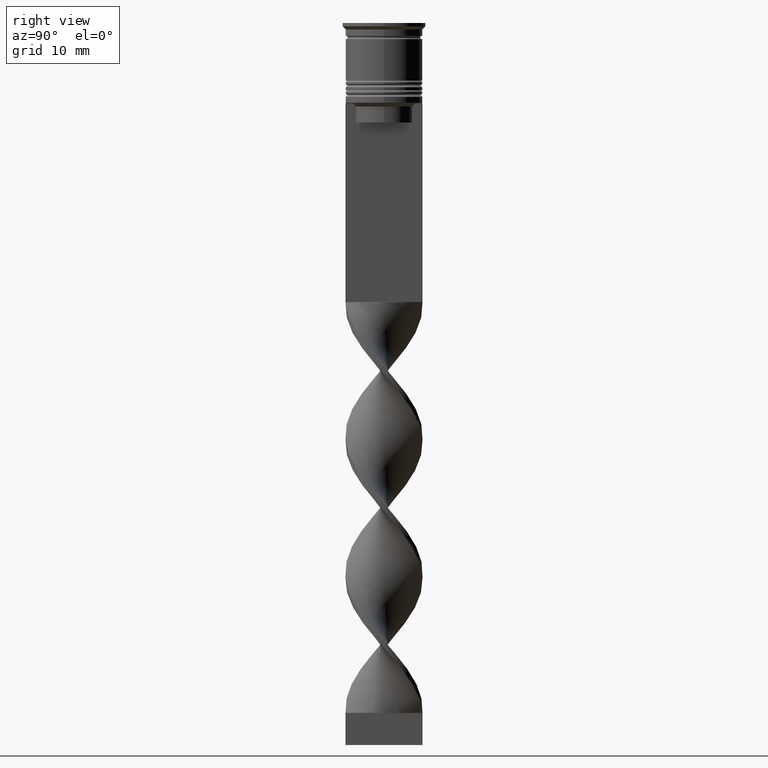
[diagram: clean part render]
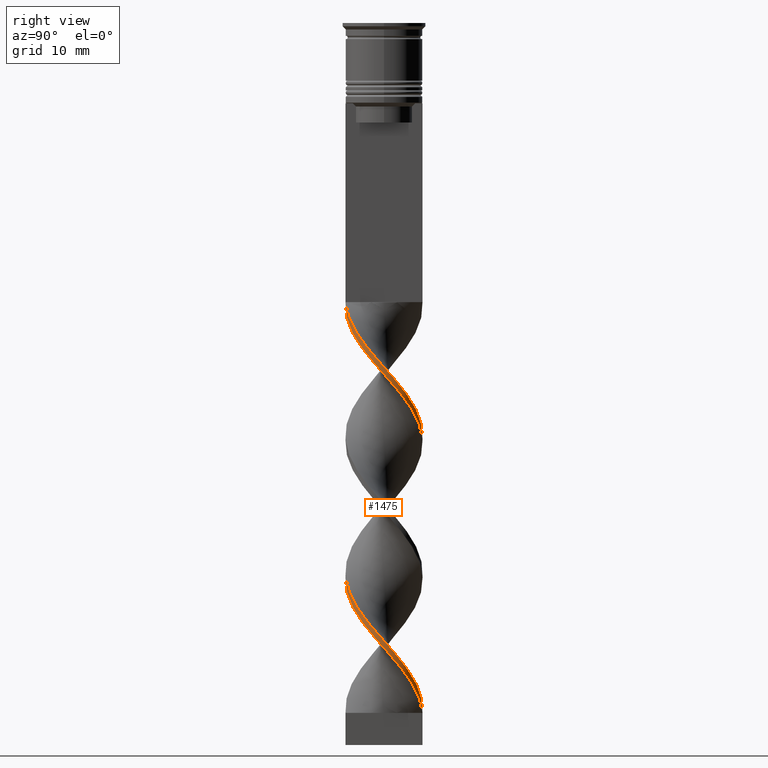
[diagram: same view with one face highlighted and labeled with its STEP entity id]
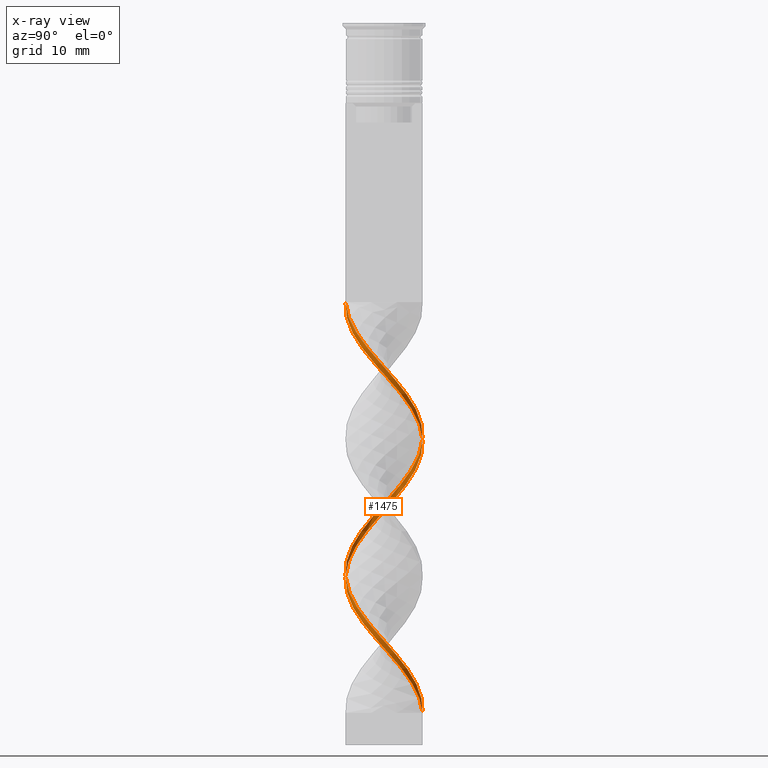
[diagram: x-ray of the same camera — body ghosted, the highlighted face saturated]
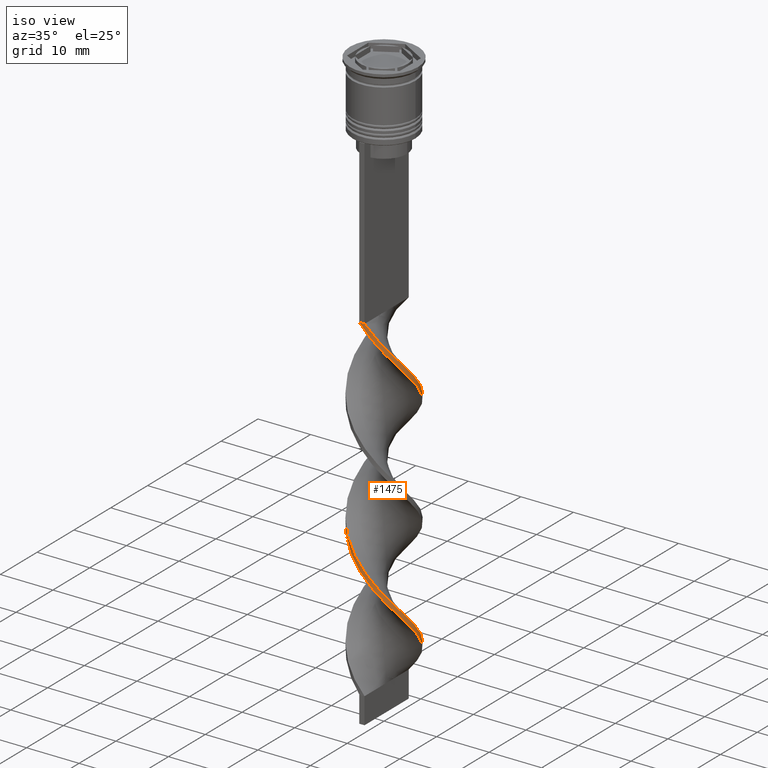
[diagram: same view with one face highlighted and labeled with its STEP entity id]
A machine part, right view. The second image highlights one B-rep face of the part: STEP entity #1475.
The next image is the same camera in x-ray: the body ghosted, the highlighted face saturated — about 0% of this face is hidden behind the body in this view.
A second angle (iso view) of the same face is appended — the face is thin or edge-on in the first view.
In plain terms, the highlighted face is a freeform B-spline surface patch.
Its self-contained STEP definition (entity closure, byte-faithful):
#14 = CARTESIAN_POINT ( 'NONE',  ( 4.352991323530321921, -4.159503159906209113, -91.08974358974359120 ) ) ;
#36 = CARTESIAN_POINT ( 'NONE',  ( -4.190053366537505042, 4.384962638200773810, -70.57692307692306599 ) ) ;
#38 = CARTESIAN_POINT ( 'NONE',  ( -5.988975108237873712, 0.9574036273986639145, -73.85897435897436480 ) ) ;
#42 = CARTESIAN_POINT ( 'NONE',  ( 0.2285318993335633819, -6.060710991611130360, -44.32051282051282470 ) ) ;
#47 = CARTESIAN_POINT ( 'NONE',  ( 1.228531899333563215, -5.939289008388868751, -44.32051282051282470 ) ) ;
#52 = CARTESIAN_POINT ( 'NONE',  ( 4.858046446425394294, 3.630954320453863016, -59.08974358974359120 ) ) ;
#54 = CARTESIAN_POINT ( 'NONE',  ( -4.190053366537510371, -4.384962638200768481, -80.42307692307691980 ) ) ;
#58 = CARTESIAN_POINT ( 'NONE',  ( -2.614197889543184328, -5.472697136436196708, -83.70512820512820440 ) ) ;
#68 = CARTESIAN_POINT ( 'NONE',  ( 5.895984904460662257, 1.219574518580964551, -97.65384615384614619 ) ) ;
#76 = CARTESIAN_POINT ( 'NONE',  ( -1.921364894438377657, -5.705993072412531397, -84.52564102564103621 ) ) ;
#88 = CARTESIAN_POINT ( 'NONE',  ( 6.044068061194097119, -0.5036723384328415376, -54.16666666666665719 ) ) ;
#108 = CARTESIAN_POINT ( 'NONE',  ( 1.921364894438374549, 5.705993072412533174, -105.8589743589743506 ) ) ;
#110 = CARTESIAN_POINT ( 'NONE',  ( -2.614197889543180331, 5.472697136436198484, -67.29487179487178139 ) ) ;
#114 = CARTESIAN_POINT ( 'NONE',  ( 4.858046446425394294, 3.630954320453863016, -59.08974358974358410 ) ) ;
#118 = CARTESIAN_POINT ( 'NONE',  ( -3.018907784180934861, -5.260288998093234802, -82.06410256410255499 ) ) ;
#124 = CARTESIAN_POINT ( 'NONE',  ( -5.432795012591220107, 2.595137443597922644, -73.03846153846153300 ) ) ;
#132 = CARTESIAN_POINT ( 'NONE',  ( 3.018907784180934417, -5.260288998093235691, -90.26923076923077360 ) ) ;
#140 = CARTESIAN_POINT ( 'NONE',  ( -4.653870821996361151, -3.819880413333761826, -79.60256410256410220 ) ) ;
#145 = CARTESIAN_POINT ( 'NONE',  ( 5.895984904460662257, -1.219574518580966105, -96.01282051282051100 ) ) ;
#149 = CARTESIAN_POINT ( 'NONE',  ( 0.5000000000000005551, 6.000000000000000000, -107.5000000000000000 ) ) ;
#153 = CARTESIAN_POINT ( 'NONE',  ( 4.190053366537507706, 4.384962638200772034, -101.7564102564102484 ) ) ;
#162 = CARTESIAN_POINT ( 'NONE',  ( 5.221935568727516852, 2.996896547440106140, -100.9358974358974308 ) ) ;
#167 = CARTESIAN_POINT ( 'NONE',  ( -0.4999999999999994449, 5.999999999999999112, -107.5000000000000000 ) ) ;
#171 = CARTESIAN_POINT ( 'NONE',  ( -2.614197889543184328, -5.472697136436196708, -83.70512820512820440 ) ) ;
#189 = CARTESIAN_POINT ( 'NONE',  ( 4.190053366537507706, 4.384962638200772034, -59.08974358974358410 ) ) ;
#201 = CARTESIAN_POINT ( 'NONE',  ( 5.432795012591220107, -2.595137443597922200, -94.37179487179486159 ) ) ;
#271 = CARTESIAN_POINT ( 'NONE',  ( 5.585824691029640299, -2.362838774426348820, -93.55128205128204399 ) ) ;
#310 = CARTESIAN_POINT ( 'NONE',  ( 1.921364894438374549, 5.705993072412533174, -63.19230769230768630 ) ) ;
#322 = VERTEX_POINT ( 'NONE', #1308 ) ;
#323 = CARTESIAN_POINT ( 'NONE',  ( 0.5000000000000002220, -5.999999999999999112, -43.50000000000000000 ) ) ;
#325 = CARTESIAN_POINT ( 'NONE',  ( 4.858046446425393405, -3.630954320453865236, -91.91025641025643722 ) ) ;
#328 = CARTESIAN_POINT ( 'NONE',  ( -5.117688277455215484, -3.254798188466751174, -78.78205128205127039 ) ) ;
#332 = CARTESIAN_POINT ( 'NONE',  ( 2.345611019436006028, -5.545097739941144077, -46.78205128205127750 ) ) ;
#340 = CARTESIAN_POINT ( 'NONE',  ( 3.847936200635250437, 4.688051999358552990, -60.73076923076922640 ) ) ;
#342 = CARTESIAN_POINT ( 'NONE',  ( 5.988975108237873712, -0.9574036273986643586, -52.52564102564103621 ) ) ;
#346 = CARTESIAN_POINT ( 'NONE',  ( 5.117688277455213708, -3.254798188466753839, -50.88461538461537970 ) ) ;
#351 = CARTESIAN_POINT ( 'NONE',  ( 6.016521584715984972, -0.2268656444829120489, -53.34615384615383959 ) ) ;
#358 = CARTESIAN_POINT ( 'NONE',  ( 1.228531899333566102, 5.939289008388869640, -64.01282051282051100 ) ) ;
#360 = CARTESIAN_POINT ( 'NONE',  ( 3.231067045089215828, -5.080374567897375293, -46.78205128205127750 ) ) ;
#368 = CARTESIAN_POINT ( 'NONE',  ( -5.117688277455211932, 3.254798188466756503, -72.21794871794871540 ) ) ;
#380 = CARTESIAN_POINT ( 'NONE',  ( 0.5000000000000005551, 6.000000000000000000, -107.5000000000000000 ) ) ;
#387 = CARTESIAN_POINT ( 'NONE',  ( -5.432795012591220107, 2.595137443597922644, -73.03846153846153300 ) ) ;
#395 = CARTESIAN_POINT ( 'NONE',  ( 3.231067045089215828, -5.080374567897374405, -46.78205128205127750 ) ) ;
#399 = CARTESIAN_POINT ( 'NONE',  ( 4.653870821996360263, -3.819880413333763158, -92.73076923076922640 ) ) ;
#403 = CARTESIAN_POINT ( 'NONE',  ( 1.228531899333565880, 5.939289008388869640, -64.01282051282051100 ) ) ;
#409 = CARTESIAN_POINT ( 'NONE',  ( 3.018907784180934417, 5.260288998093234802, -60.73076923076922640 ) ) ;
#426 = CARTESIAN_POINT ( 'NONE',  ( 6.016521584715984972, -0.2268656444829120489, -96.01282051282051100 ) ) ;
#432 = CARTESIAN_POINT ( 'NONE',  ( -0.4999999999999997780, -6.000000000000000000, -86.16666666666667140 ) ) ;
#441 = CARTESIAN_POINT ( 'NONE',  ( 6.044068061194096231, 0.5036723384328413156, -96.83333333333332860 ) ) ;
#442 = VERTEX_POINT ( 'NONE', #3404 ) ;
#452 = CARTESIAN_POINT ( 'NONE',  ( 4.352991323530322809, 4.159503159906207337, -102.5769230769230660 ) ) ;
#455 = CARTESIAN_POINT ( 'NONE',  ( 5.895984904460661369, 1.219574518580964329, -97.65384615384614619 ) ) ;
#478 = CARTESIAN_POINT ( 'NONE',  ( -3.847936200635249104, 4.688051999358553878, -68.93589743589743080 ) ) ;
#522 = CARTESIAN_POINT ( 'NONE',  ( 0.5000000000000002220, -6.000000000000000000, -86.16666666666667140 ) ) ;
#549 = FACE_OUTER_BOUND ( 'NONE', #793, .T. ) ;
#568 = CARTESIAN_POINT ( 'NONE',  ( 0.5000000000000002220, -6.000000000000000000, -43.50000000000000000 ) ) ;
#582 = CARTESIAN_POINT ( 'NONE',  ( -3.018907784180934417, 5.260288998093236579, -68.93589743589743080 ) ) ;
#584 = CARTESIAN_POINT ( 'NONE',  ( -4.352991323530321033, 4.159503159906210001, -69.75641025641024839 ) ) ;
#603 = CARTESIAN_POINT ( 'NONE',  ( -5.432795012591220996, -2.595137443597921312, -77.96153846153845279 ) ) ;
#609 = CARTESIAN_POINT ( 'NONE',  ( -5.585824691029640299, -2.362838774426345712, -78.78205128205127039 ) ) ;
#622 = CARTESIAN_POINT ( 'NONE',  ( 4.653870821996360263, -3.819880413333763158, -50.06410256410256210 ) ) ;
#630 = CARTESIAN_POINT ( 'NONE',  ( 0.5000000000000005551, 6.000000000000000000, -107.5000000000000000 ) ) ;
#636 = CARTESIAN_POINT ( 'NONE',  ( -4.190053366537505042, 4.384962638200774698, -70.57692307692306599 ) ) ;
#653 = CARTESIAN_POINT ( 'NONE',  ( -1.672314254691075641, 5.829906481789053352, -67.29487179487178139 ) ) ;
#660 = CARTESIAN_POINT ( 'NONE',  ( 2.614197889543183884, 5.472697136436196708, -62.37179487179486870 ) ) ;
#671 = CARTESIAN_POINT ( 'NONE',  ( -5.895984904460662257, 1.219574518580968325, -74.67948717948718240 ) ) ;
#678 = CARTESIAN_POINT ( 'NONE',  ( 5.221935568727516852, 2.996896547440106140, -58.26923076923076650 ) ) ;
#684 = CARTESIAN_POINT ( 'NONE',  ( 4.653870821996360263, 3.819880413333762270, -100.9358974358974308 ) ) ;
#687 = CARTESIAN_POINT ( 'NONE',  ( 0.9504230770123207606, -5.945308736700090968, -87.80769230769230660 ) ) ;
#694 = CARTESIAN_POINT ( 'NONE',  ( 6.044068061194097119, -0.5036723384328415376, -96.83333333333332860 ) ) ;
#697 = CARTESIAN_POINT ( 'NONE',  ( 1.228531899333563215, -5.939289008388868751, -86.98717948717948900 ) ) ;
#702 = CARTESIAN_POINT ( 'NONE',  ( 3.231067045089216716, 5.080374567897374405, -104.2179487179487012 ) ) ;
#716 = CARTESIAN_POINT ( 'NONE',  ( 0.2285318993335655469, 6.060710991611129472, -106.6794871794871824 ) ) ;
#721 = CARTESIAN_POINT ( 'NONE',  ( 2.614197889543183884, 5.472697136436196708, -105.0384615384615330 ) ) ;
#732 = CARTESIAN_POINT ( 'NONE',  ( 1.672314254691078972, 5.829906481789051576, -62.37179487179486870 ) ) ;
#749 = CARTESIAN_POINT ( 'NONE',  ( -5.221935568727515076, 2.996896547440107028, -71.39743589743588359 ) ) ;
#793 = EDGE_LOOP ( 'NONE', ( #2216, #2337, #2950, #1020 ) ) ;
#798 = CARTESIAN_POINT ( 'NONE',  ( -0.2285318993335664073, -6.060710991611129472, -85.34615384615383959 ) ) ;
#839 = CARTESIAN_POINT ( 'NONE',  ( -0.1666666666666661578, 5.999999999999999112, -107.5000000000000000 ) ) ;
#840 = CARTESIAN_POINT ( 'NONE',  ( 5.787399899633756561, -1.660121200912507478, -94.37179487179486159 ) ) ;
#858 = CARTESIAN_POINT ( 'NONE',  ( 1.672314254691077862, -5.829906481789053352, -45.96153846153845279 ) ) ;
#870 = CARTESIAN_POINT ( 'NONE',  ( -5.895984904460663145, -1.219574518580961442, -76.32051282051281760 ) ) ;
#885 = CARTESIAN_POINT ( 'NONE',  ( 0.9504230770123225369, 5.945308736700090968, -105.8589743589743506 ) ) ;
#887 = CARTESIAN_POINT ( 'NONE',  ( 2.614197889543182107, -5.472697136436197596, -45.96153846153845279 ) ) ;
#895 = CARTESIAN_POINT ( 'NONE',  ( -3.604480575359219507, 4.822625818147005639, -69.75641025641024839 ) ) ;
#902 = CARTESIAN_POINT ( 'NONE',  ( 5.895984904460662257, -1.219574518580966105, -53.34615384615383959 ) ) ;
#904 = CARTESIAN_POINT ( 'NONE',  ( 6.016521584715985860, -0.2268656444829121599, -53.34615384615383959 ) ) ;
#908 = CARTESIAN_POINT ( 'NONE',  ( -0.4999999999999997780, -6.000000000000000000, -86.16666666666667140 ) ) ;
#915 = CARTESIAN_POINT ( 'NONE',  ( 5.432795012591220107, 2.595137443597919980, -56.62820512820513130 ) ) ;
#920 = CARTESIAN_POINT ( 'NONE',  ( 5.787399899633756561, 1.660121200912505479, -56.62820512820513130 ) ) ;
#922 = CARTESIAN_POINT ( 'NONE',  ( 5.117688277455213708, 3.254798188466753395, -57.44871794871794890 ) ) ;
#926 = CARTESIAN_POINT ( 'NONE',  ( -5.221935568727517740, -2.996896547440105252, -79.60256410256410220 ) ) ;
#941 = CARTESIAN_POINT ( 'NONE',  ( 5.432795012591220107, -2.595137443597922200, -94.37179487179486159 ) ) ;
#943 = CARTESIAN_POINT ( 'NONE',  ( -3.231067045089215828, 5.080374567897375293, -68.11538461538459899 ) ) ;
#948 = CARTESIAN_POINT ( 'NONE',  ( 0.5000000000000005551, 6.000000000000000000, -64.83333333333332860 ) ) ;
#955 = CARTESIAN_POINT ( 'NONE',  ( 5.432795012591220107, 2.595137443597919980, -99.29487179487178139 ) ) ;
#959 = CARTESIAN_POINT ( 'NONE',  ( -3.231067045089219825, -5.080374567897373517, -82.88461538461537259 ) ) ;
#968 = CARTESIAN_POINT ( 'NONE',  ( -4.190053366537509483, -4.384962638200769369, -80.42307692307691980 ) ) ;
#984 = CARTESIAN_POINT ( 'NONE',  ( 1.672314254691078972, 5.829906481789051576, -105.0384615384615188 ) ) ;
#990 = CARTESIAN_POINT ( 'NONE',  ( 6.044068061194097119, -0.5036723384328415376, -96.83333333333332860 ) ) ;
#1004 = CARTESIAN_POINT ( 'NONE',  ( -6.044068061194096231, -0.5036723384328406494, -75.50000000000000000 ) ) ;
#1010 = CARTESIAN_POINT ( 'NONE',  ( -5.747901747727229171, 1.935476698729089007, -73.85897435897436480 ) ) ;
#1017 = CARTESIAN_POINT ( 'NONE',  ( 3.847936200635250881, 4.688051999358552990, -103.3974358974358836 ) ) ;
#1020 = ORIENTED_EDGE ( 'NONE', *, *, #2644, .F. ) ;
#1024 = CARTESIAN_POINT ( 'NONE',  ( -1.921364894438370552, 5.705993072412533174, -66.47435897435896379 ) ) ;
#1032 = CARTESIAN_POINT ( 'NONE',  ( 5.988975108237873712, -0.9574036273986643586, -95.19230769230769340 ) ) ;
#1044 = DIRECTION ( 'NONE',  ( -1.000000000000000000, 0.000000000000000000, 0.000000000000000000 ) ) ;
#1066 = VERTEX_POINT ( 'NONE', #1462 ) ;
#1147 = CARTESIAN_POINT ( 'NONE',  ( 4.653870821996361151, 3.819880413333762714, -100.9358974358974308 ) ) ;
#1149 = CARTESIAN_POINT ( 'NONE',  ( -6.044068061194097119, -0.5036723384328405384, -75.49999999999998579 ) ) ;
#1153 = CARTESIAN_POINT ( 'NONE',  ( 6.044068061194097119, -0.5036723384328415376, -54.16666666666666430 ) ) ;
#1161 = CARTESIAN_POINT ( 'NONE',  ( -3.604480575359222616, -4.822625818147002086, -81.24358974358973740 ) ) ;
#1166 = CARTESIAN_POINT ( 'NONE',  ( -5.747901747727229171, 1.935476698729089229, -73.85897435897436480 ) ) ;
#1172 = CARTESIAN_POINT ( 'NONE',  ( 4.352991323530321033, -4.159503159906209113, -48.42307692307691269 ) ) ;
#1177 = CARTESIAN_POINT ( 'NONE',  ( 1.672314254691079638, 5.829906481789052464, -105.0384615384615330 ) ) ;
#1179 = CARTESIAN_POINT ( 'NONE',  ( 6.044068061194097119, 0.5036723384328413156, -54.16666666666665719 ) ) ;
#1186 = CARTESIAN_POINT ( 'NONE',  ( -0.2285318993335620774, 6.060710991611130360, -65.65384615384614619 ) ) ;
#1194 = CARTESIAN_POINT ( 'NONE',  ( 6.044068061194096231, 0.5036723384328413156, -54.16666666666666430 ) ) ;
#1196 = CARTESIAN_POINT ( 'NONE',  ( 3.604480575359220396, -4.822625818147004750, -48.42307692307691269 ) ) ;
#1198 = CARTESIAN_POINT ( 'NONE',  ( 4.858046446425393405, -3.630954320453865236, -49.24358974358973740 ) ) ;
#1212 = CARTESIAN_POINT ( 'NONE',  ( 5.221935568727515964, -2.996896547440107472, -92.73076923076922640 ) ) ;
#1214 = CARTESIAN_POINT ( 'NONE',  ( 4.352991323530321921, -4.159503159906209113, -48.42307692307691269 ) ) ;
#1218 = CARTESIAN_POINT ( 'NONE',  ( 4.352991323530322809, 4.159503159906207337, -59.91025641025640880 ) ) ;
#1226 = CARTESIAN_POINT ( 'NONE',  ( 4.858046446425392517, -3.630954320453864348, -91.91025641025643722 ) ) ;
#1245 = CARTESIAN_POINT ( 'NONE',  ( 4.653870821996360263, 3.819880413333762270, -58.26923076923076650 ) ) ;
#1251 = CARTESIAN_POINT ( 'NONE',  ( 5.585824691029640299, 2.362838774426348376, -100.1153846153846274 ) ) ;
#1259 = CARTESIAN_POINT ( 'NONE',  ( 3.604480575359220840, 4.822625818147002086, -102.5769230769230660 ) ) ;
#1263 = CARTESIAN_POINT ( 'NONE',  ( -5.787399899633756561, -1.660121200912506367, -77.96153846153845279 ) ) ;
#1276 = CARTESIAN_POINT ( 'NONE',  ( -5.895984904460662257, -1.219574518580961220, -76.32051282051281760 ) ) ;
#1281 = CARTESIAN_POINT ( 'NONE',  ( 4.190053366537506818, -4.384962638200772922, -91.91025641025643722 ) ) ;
#1299 = CARTESIAN_POINT ( 'NONE',  ( 0.2285318993335655469, 6.060710991611129472, -64.01282051282051100 ) ) ;
#1308 = CARTESIAN_POINT ( 'NONE',  ( 0.5000000000000002220, -5.999999999999999112, -43.50000000000000000 ) ) ;
#1309 = CARTESIAN_POINT ( 'NONE',  ( 1.228531899333565880, 5.939289008388869640, -106.6794871794871824 ) ) ;
#1366 = CARTESIAN_POINT ( 'NONE',  ( 1.228531899333563659, -5.939289008388869640, -86.98717948717948900 ) ) ;
#1368 = EDGE_CURVE ( 'NONE', #3313, #1066, #3231, .T. ) ;
#1423 = CARTESIAN_POINT ( 'NONE',  ( -0.2285318993335620774, 6.060710991611129472, -65.65384615384614619 ) ) ;
#1425 = CARTESIAN_POINT ( 'NONE',  ( 1.228531899333563659, -5.939289008388869640, -44.32051282051282470 ) ) ;
#1437 = CARTESIAN_POINT ( 'NONE',  ( 6.016521584715985860, -0.2268656444829121599, -96.01282051282051100 ) ) ;
#1439 = CARTESIAN_POINT ( 'NONE',  ( -4.858046446425391629, 3.630954320453866568, -70.57692307692306599 ) ) ;
#1443 = CARTESIAN_POINT ( 'NONE',  ( -6.044068061194097119, 0.5036723384328423148, -75.50000000000000000 ) ) ;
#1452 = CARTESIAN_POINT ( 'NONE',  ( 2.614197889543183884, 5.472697136436196708, -62.37179487179486870 ) ) ;
#1456 = CARTESIAN_POINT ( 'NONE',  ( -3.847936200635251325, -4.688051999358552990, -82.06410256410255499 ) ) ;
#1462 = CARTESIAN_POINT ( 'NONE',  ( 0.5000000000000005551, 6.000000000000000000, -107.5000000000000000 ) ) ;
#1463 = CARTESIAN_POINT ( 'NONE',  ( 5.895984904460661369, 1.219574518580964329, -54.98717948717948190 ) ) ;
#1470 = CARTESIAN_POINT ( 'NONE',  ( 3.231067045089216716, 5.080374567897374405, -61.55128205128204399 ) ) ;
#1472 = CARTESIAN_POINT ( 'NONE',  ( 5.787399899633756561, -1.660121200912507478, -51.70512820512820440 ) ) ;
#1475 = ADVANCED_FACE ( 'NONE', ( #549 ), #1611, .T. ) ;
#1481 =( BOUNDED_CURVE ( )  B_SPLINE_CURVE ( 2, ( #323, #47, #1999, #2561, #395, #2254, #1172, #2602, #2327, #2016, #1741, #2844, #351, #1194, #1463, #2584, #915, #3135, #1245, #189, #1588, #409, #2934, #732, #1519, #1299, #1829, #3238, #1024, #2068, #2413, #478, #2361, #3472, #749, #2633, #3520, #1798, #1541, #1004, #1276, #1863, #2969, #2902, #140, #968, #1814, #118, #2135, #2082, #3217, #1844, #3186, #697, #3172, #2949, #2665, #2918, #3203, #1226, #2345, #3455, #2681, #2117, #426, #441, #455, #2649, #955, #1554, #684, #153, #1259, #2376, #3486, #984, #2098, #716, #167 ),
 .UNSPECIFIED., .F., .T. ) 
 B_SPLINE_CURVE_WITH_KNOTS ( ( 3, 2, 2, 2, 2, 2, 2, 2, 2, 2, 2, 2, 2, 2, 2, 2, 2, 2, 2, 2, 2, 2, 2, 2, 2, 2, 2, 2, 2, 2, 2, 2, 2, 2, 2, 2, 2, 2, 2, 3 ),
 ( 0.000000000000000000, 0.01923076923076923184, 0.03846153846153846367, 0.05769230769230768857, 0.07692307692307692735, 0.09615384615384615918, 0.1153846153846153771, 0.1346153846153846090, 0.1538461538461538547, 0.1730769230769230449, 0.1923076923076923184, 0.2115384615384615363, 0.2307692307692307543, 0.2500000000000000000, 0.2692307692307692180, 0.2884615384615384359, 0.3076923076923077094, 0.3269230769230769273, 0.3461538461538460898, 0.3653846153846153633, 0.3846153846153846367, 0.4038461538461539102, 0.4230769230769230727, 0.4423076923076922906, 0.4615384615384615086, 0.4807692307692307820, 0.5000000000000000000, 0.5192307692307692735, 0.5384615384615384359, 0.5576923076923077094, 0.5769230769230768718, 0.5961538461538461453, 0.6153846153846154188, 0.6346153846153845812, 0.6538461538461538547, 0.6730769230769230171, 0.6923076923076921796, 0.7115384615384615641, 0.7307692307692307265, 0.7500000000000000000 ),
 .UNSPECIFIED. ) 
 CURVE ( )  GEOMETRIC_REPRESENTATION_ITEM ( )  RATIONAL_B_SPLINE_CURVE ( ( 1.000000000000000000, 0.9927088740980539727, 1.000000000000000000, 0.9927088740980539727, 1.000000000000000000, 0.9927088740980539727, 1.000000000000000000, 0.9927088740980539727, 1.000000000000000000, 0.9927088740980539727, 1.000000000000000000, 0.9927088740980539727, 1.000000000000000000, 0.9927088740980539727, 1.000000000000000000, 0.9927088740980539727, 1.000000000000000000, 0.9927088740980539727, 1.000000000000000000, 0.9927088740980539727, 1.000000000000000000, 0.9927088740980539727, 1.000000000000000000, 0.9927088740980539727, 1.000000000000000000, 0.9927088740980539727, 1.000000000000000000, 0.9927088740980539727, 1.000000000000000000, 0.9927088740980539727, 1.000000000000000000, 0.9927088740980539727, 1.000000000000000000, 0.9927088740980539727, 1.000000000000000000, 0.9927088740980539727, 1.000000000000000000, 0.9927088740980539727, 1.000000000000000000, 0.9927088740980539727, 1.000000000000000000, 0.9927088740980539727, 1.000000000000000000, 0.9927088740980539727, 1.000000000000000000, 0.9927088740980539727, 1.000000000000000000, 0.9927088740980539727, 1.000000000000000000, 0.9927088740980539727, 1.000000000000000000, 0.9927088740980539727, 1.000000000000000000, 0.9927088740980539727, 1.000000000000000000, 0.9927088740980539727, 1.000000000000000000, 0.9927088740980539727, 1.000000000000000000, 0.9927088740980539727, 1.000000000000000000, 0.9927088740980539727, 1.000000000000000000, 0.9927088740980539727, 1.000000000000000000, 0.9927088740980539727, 1.000000000000000000, 0.9927088740980539727, 1.000000000000000000, 0.9927088740980539727, 1.000000000000000000, 0.9927088740980539727, 1.000000000000000000, 0.9927088740980539727, 1.000000000000000000, 0.9927088740980539727, 1.000000000000000000, 0.9927088740980539727, 1.000000000000000000 ) ) 
 REPRESENTATION_ITEM ( '' )  );
#1482 = CARTESIAN_POINT ( 'NONE',  ( -4.858046446425396070, -3.630954320453860351, -80.42307692307691980 ) ) ;
#1492 = CARTESIAN_POINT ( 'NONE',  ( 4.653870821996361151, 3.819880413333762714, -58.26923076923076650 ) ) ;
#1498 = CARTESIAN_POINT ( 'NONE',  ( 1.672314254691077640, -5.829906481789053352, -45.96153846153845990 ) ) ;
#1506 = CARTESIAN_POINT ( 'NONE',  ( -5.117688277455211932, 3.254798188466756947, -72.21794871794871540 ) ) ;
#1512 = CARTESIAN_POINT ( 'NONE',  ( 4.190053366537506818, -4.384962638200773810, -91.91025641025643722 ) ) ;
#1519 = CARTESIAN_POINT ( 'NONE',  ( 0.9504230770123223149, 5.945308736700090080, -63.19230769230768630 ) ) ;
#1529 = CARTESIAN_POINT ( 'NONE',  ( 0.2285318993335633819, -6.060710991611129472, -86.98717948717948900 ) ) ;
#1535 = CARTESIAN_POINT ( 'NONE',  ( 5.747901747727229171, -1.935476698729089451, -95.19230769230769340 ) ) ;
#1541 = CARTESIAN_POINT ( 'NONE',  ( -6.016521584715984972, 0.2268656444829141028, -74.67948717948718240 ) ) ;
#1554 = CARTESIAN_POINT ( 'NONE',  ( 5.117688277455212820, 3.254798188466753395, -100.1153846153846132 ) ) ;
#1557 = CARTESIAN_POINT ( 'NONE',  ( -6.044068061194097119, 0.5036723384328423148, -75.49999999999998579 ) ) ;
#1563 = CARTESIAN_POINT ( 'NONE',  ( 2.614197889543183884, 5.472697136436196708, -105.0384615384615188 ) ) ;
#1588 = CARTESIAN_POINT ( 'NONE',  ( 3.604480575359220840, 4.822625818147002086, -59.91025641025640880 ) ) ;
#1611 =( BOUNDED_SURFACE ( )  B_SPLINE_SURFACE ( 1, 2, ( 
 ( #568, #1425, #1748, #887, #360, #2262, #1214, #1198, #1732, #2037, #1472, #342, #904, #1179, #2300, #2801, #1986, #922, #1492, #3405, #3077, #2022, #3143, #2334, #2314, #3422, #3441, #2874, #2605, #110, #943, #2822, #584, #1439, #1694, #3369, #2538, #38, #1718, #1149, #870, #3096, #603, #328, #2551, #54, #1161, #2277, #3384, #2728, #3588, #798, #522, #1366, #1911, #2869, #2818, #2833, #14, #325, #1212, #271, #840, #1032, #1437, #2275, #68, #3382, #2566, #1716, #1147, #1746, #3353, #2872, #2246, #1177, #885, #1692, #2549 ),
 ( #3094, #2298, #2589, #858, #2799, #1730, #1196, #2848, #3403, #3075, #2835, #2005, #902, #88, #2260, #2020, #920, #3124, #3141, #52, #2820, #340, #1470, #1452, #310, #358, #2312, #1423, #2035, #653, #1768, #582, #2536, #36, #3367, #1506, #124, #1010, #671, #1557, #2057, #2905, #1263, #2655, #2123, #3462, #1851, #2086, #959, #171, #3175, #2367, #432, #1529, #687, #2667, #3439, #2397, #3510, #1281, #399, #2640, #941, #3488, #145, #990, #3161, #3223, #2104, #1251, #2938, #3208, #3189, #2925, #702, #721, #108, #2071, #380 ) ),
 .UNSPECIFIED., .F., .F., .F. ) 
 B_SPLINE_SURFACE_WITH_KNOTS ( ( 2, 2 ),
 ( 3, 2, 2, 2, 2, 2, 2, 2, 2, 2, 2, 2, 2, 2, 2, 2, 2, 2, 2, 2, 2, 2, 2, 2, 2, 2, 2, 2, 2, 2, 2, 2, 2, 2, 2, 2, 2, 2, 2, 3 ),
 ( 0.000000000000000000, 1.000000000000000000 ),
 ( 0.000000000000000000, 0.01923076923076923184, 0.03846153846153846367, 0.05769230769230769551, 0.07692307692307692735, 0.09615384615384615918, 0.1153846153846153910, 0.1346153846153846090, 0.1538461538461538547, 0.1730769230769230727, 0.1923076923076923184, 0.2115384615384615363, 0.2307692307692307820, 0.2500000000000000000, 0.2692307692307692180, 0.2884615384615384359, 0.3076923076923077094, 0.3269230769230769273, 0.3461538461538461453, 0.3653846153846153633, 0.3846153846153846367, 0.4038461538461538547, 0.4230769230769230727, 0.4423076923076922906, 0.4615384615384615641, 0.4807692307692307820, 0.5000000000000000000, 0.5192307692307692735, 0.5384615384615384359, 0.5576923076923077094, 0.5769230769230768718, 0.5961538461538461453, 0.6153846153846154188, 0.6346153846153845812, 0.6538461538461538547, 0.6730769230769231282, 0.6923076923076922906, 0.7115384615384615641, 0.7307692307692307265, 0.7500000000000000000 ),
 .UNSPECIFIED. ) 
 GEOMETRIC_REPRESENTATION_ITEM ( )  RATIONAL_B_SPLINE_SURFACE ( (
 ( 1.000000000000000000, 0.9927088740980539727, 1.000000000000000000, 0.9927088740980539727, 1.000000000000000000, 0.9927088740980539727, 1.000000000000000000, 0.9927088740980539727, 1.000000000000000000, 0.9927088740980539727, 1.000000000000000000, 0.9927088740980539727, 1.000000000000000000, 0.9927088740980539727, 1.000000000000000000, 0.9927088740980539727, 1.000000000000000000, 0.9927088740980539727, 1.000000000000000000, 0.9927088740980539727, 1.000000000000000000, 0.9927088740980539727, 1.000000000000000000, 0.9927088740980539727, 1.000000000000000000, 0.9927088740980539727, 1.000000000000000000, 0.9927088740980539727, 1.000000000000000000, 0.9927088740980539727, 1.000000000000000000, 0.9927088740980539727, 1.000000000000000000, 0.9927088740980539727, 1.000000000000000000, 0.9927088740980539727, 1.000000000000000000, 0.9927088740980539727, 1.000000000000000000, 0.9927088740980539727, 1.000000000000000000, 0.9927088740980539727, 1.000000000000000000, 0.9927088740980539727, 1.000000000000000000, 0.9927088740980539727, 1.000000000000000000, 0.9927088740980539727, 1.000000000000000000, 0.9927088740980539727, 1.000000000000000000, 0.9927088740980539727, 1.000000000000000000, 0.9927088740980539727, 1.000000000000000000, 0.9927088740980539727, 1.000000000000000000, 0.9927088740980539727, 1.000000000000000000, 0.9927088740980539727, 1.000000000000000000, 0.9927088740980539727, 1.000000000000000000, 0.9927088740980539727, 1.000000000000000000, 0.9927088740980539727, 1.000000000000000000, 0.9927088740980539727, 1.000000000000000000, 0.9927088740980539727, 1.000000000000000000, 0.9927088740980539727, 1.000000000000000000, 0.9927088740980539727, 1.000000000000000000, 0.9927088740980539727, 1.000000000000000000, 0.9927088740980539727, 1.000000000000000000),
 ( 1.000000000000000000, 0.9927088740980539727, 1.000000000000000000, 0.9927088740980539727, 1.000000000000000000, 0.9927088740980539727, 1.000000000000000000, 0.9927088740980539727, 1.000000000000000000, 0.9927088740980539727, 1.000000000000000000, 0.9927088740980539727, 1.000000000000000000, 0.9927088740980539727, 1.000000000000000000, 0.9927088740980539727, 1.000000000000000000, 0.9927088740980539727, 1.000000000000000000, 0.9927088740980539727, 1.000000000000000000, 0.9927088740980539727, 1.000000000000000000, 0.9927088740980539727, 1.000000000000000000, 0.9927088740980539727, 1.000000000000000000, 0.9927088740980539727, 1.000000000000000000, 0.9927088740980539727, 1.000000000000000000, 0.9927088740980539727, 1.000000000000000000, 0.9927088740980539727, 1.000000000000000000, 0.9927088740980539727, 1.000000000000000000, 0.9927088740980539727, 1.000000000000000000, 0.9927088740980539727, 1.000000000000000000, 0.9927088740980539727, 1.000000000000000000, 0.9927088740980539727, 1.000000000000000000, 0.9927088740980539727, 1.000000000000000000, 0.9927088740980539727, 1.000000000000000000, 0.9927088740980539727, 1.000000000000000000, 0.9927088740980539727, 1.000000000000000000, 0.9927088740980539727, 1.000000000000000000, 0.9927088740980539727, 1.000000000000000000, 0.9927088740980539727, 1.000000000000000000, 0.9927088740980539727, 1.000000000000000000, 0.9927088740980539727, 1.000000000000000000, 0.9927088740980539727, 1.000000000000000000, 0.9927088740980539727, 1.000000000000000000, 0.9927088740980539727, 1.000000000000000000, 0.9927088740980539727, 1.000000000000000000, 0.9927088740980539727, 1.000000000000000000, 0.9927088740980539727, 1.000000000000000000, 0.9927088740980539727, 1.000000000000000000, 0.9927088740980539727, 1.000000000000000000) ) ) 
 REPRESENTATION_ITEM ( '' )  SURFACE ( )  );
#1674 = CARTESIAN_POINT ( 'NONE',  ( -0.4999999999999994449, 5.999999999999999112, -107.5000000000000000 ) ) ;
#1692 = CARTESIAN_POINT ( 'NONE',  ( 0.2285318993335656579, 6.060710991611129472, -106.6794871794871682 ) ) ;
#1694 = CARTESIAN_POINT ( 'NONE',  ( -5.221935568727515964, 2.996896547440107472, -71.39743589743588359 ) ) ;
#1716 = CARTESIAN_POINT ( 'NONE',  ( 5.117688277455213708, 3.254798188466753395, -100.1153846153846274 ) ) ;
#1718 = CARTESIAN_POINT ( 'NONE',  ( -6.016521584715985860, 0.2268656444829142138, -74.67948717948718240 ) ) ;
#1722 = CARTESIAN_POINT ( 'NONE',  ( -4.653870821996360263, 3.819880413333763158, -71.39743589743588359 ) ) ;
#1730 = CARTESIAN_POINT ( 'NONE',  ( 3.018907784180934861, -5.260288998093235691, -47.60256410256408799 ) ) ;
#1732 = CARTESIAN_POINT ( 'NONE',  ( 5.221935568727515964, -2.996896547440107472, -50.06410256410256210 ) ) ;
#1736 = CARTESIAN_POINT ( 'NONE',  ( 5.787399899633756561, 1.660121200912505479, -56.62820512820513130 ) ) ;
#1741 = CARTESIAN_POINT ( 'NONE',  ( 5.787399899633755673, -1.660121200912507033, -51.70512820512820440 ) ) ;
#1746 = CARTESIAN_POINT ( 'NONE',  ( 4.190053366537507706, 4.384962638200771146, -101.7564102564102484 ) ) ;
#1748 = CARTESIAN_POINT ( 'NONE',  ( 1.921364894438372772, -5.705993072412534062, -45.14102564102563520 ) ) ;
#1753 = CARTESIAN_POINT ( 'NONE',  ( 3.604480575359220396, -4.822625818147004750, -48.42307692307691269 ) ) ;
#1768 = CARTESIAN_POINT ( 'NONE',  ( -2.345611019436006028, 5.545097739941144077, -68.11538461538459899 ) ) ;
#1776 = CARTESIAN_POINT ( 'NONE',  ( 6.016521584715985860, 0.2268656444829105501, -54.98717948717948190 ) ) ;
#1791 = CARTESIAN_POINT ( 'NONE',  ( 3.231067045089216716, 5.080374567897374405, -61.55128205128204399 ) ) ;
#1798 = CARTESIAN_POINT ( 'NONE',  ( -5.988975108237873712, 0.9574036273986635814, -73.85897435897436480 ) ) ;
#1805 = CARTESIAN_POINT ( 'NONE',  ( 5.988975108237873712, 0.9574036273986640255, -98.47435897435896379 ) ) ;
#1814 = CARTESIAN_POINT ( 'NONE',  ( -3.604480575359221728, -4.822625818147002086, -81.24358974358973740 ) ) ;
#1829 = CARTESIAN_POINT ( 'NONE',  ( -0.4999999999999994449, 5.999999999999999112, -64.83333333333332860 ) ) ;
#1844 = CARTESIAN_POINT ( 'NONE',  ( -0.2285318993335662963, -6.060710991611129472, -85.34615384615385381 ) ) ;
#1851 = CARTESIAN_POINT ( 'NONE',  ( -4.352991323530323697, -4.159503159906206449, -81.24358974358973740 ) ) ;
#1858 = CARTESIAN_POINT ( 'NONE',  ( 6.016521584715985860, 0.2268656444829105501, -97.65384615384614619 ) ) ;
#1863 = CARTESIAN_POINT ( 'NONE',  ( -5.747901747727229171, -1.935476698729087008, -77.14102564102563520 ) ) ;
#1911 = CARTESIAN_POINT ( 'NONE',  ( 1.921364894438372772, -5.705993072412534062, -87.80769230769230660 ) ) ;
#1986 = CARTESIAN_POINT ( 'NONE',  ( 5.432795012591220996, 2.595137443597920424, -56.62820512820513130 ) ) ;
#1993 = CARTESIAN_POINT ( 'NONE',  ( 5.747901747727229171, -1.935476698729089451, -52.52564102564102910 ) ) ;
#1999 = CARTESIAN_POINT ( 'NONE',  ( 1.921364894438372550, -5.705993072412533174, -45.14102564102563520 ) ) ;
#2005 = CARTESIAN_POINT ( 'NONE',  ( 5.747901747727229171, -1.935476698729089451, -52.52564102564103621 ) ) ;
#2016 = CARTESIAN_POINT ( 'NONE',  ( 5.585824691029638522, -2.362838774426348376, -50.88461538461537970 ) ) ;
#2020 = CARTESIAN_POINT ( 'NONE',  ( 5.988975108237873712, 0.9574036273986641365, -55.80769230769230660 ) ) ;
#2022 = CARTESIAN_POINT ( 'NONE',  ( 3.018907784180935305, 5.260288998093234802, -60.73076923076922640 ) ) ;
#2026 = CARTESIAN_POINT ( 'NONE',  ( 1.921364894438374549, 5.705993072412533174, -63.19230769230768630 ) ) ;
#2035 = CARTESIAN_POINT ( 'NONE',  ( -0.9504230770123187622, 5.945308736700090968, -66.47435897435896379 ) ) ;
#2037 = CARTESIAN_POINT ( 'NONE',  ( 5.585824691029640299, -2.362838774426348820, -50.88461538461538680 ) ) ;
#2040 = CARTESIAN_POINT ( 'NONE',  ( 0.9504230770123207606, -5.945308736700090968, -87.80769230769230660 ) ) ;
#2057 = CARTESIAN_POINT ( 'NONE',  ( -6.016521584715984972, -0.2268656444829071639, -76.32051282051281760 ) ) ;
#2064 = CARTESIAN_POINT ( 'NONE',  ( -6.016521584715984972, -0.2268656444829071639, -76.32051282051281760 ) ) ;
#2068 = CARTESIAN_POINT ( 'NONE',  ( -2.614197889543180331, 5.472697136436197596, -67.29487179487178139 ) ) ;
#2071 = CARTESIAN_POINT ( 'NONE',  ( 1.228531899333566102, 5.939289008388869640, -106.6794871794871682 ) ) ;
#2077 = CARTESIAN_POINT ( 'NONE',  ( 3.604480575359220396, -4.822625818147004750, -91.08974358974359120 ) ) ;
#2082 = CARTESIAN_POINT ( 'NONE',  ( -1.672314254691079416, -5.829906481789051576, -83.70512820512820440 ) ) ;
#2086 = CARTESIAN_POINT ( 'NONE',  ( -3.847936200635250881, -4.688051999358552990, -82.06410256410255499 ) ) ;
#2098 = CARTESIAN_POINT ( 'NONE',  ( 0.9504230770123223149, 5.945308736700090080, -105.8589743589743506 ) ) ;
#2104 = CARTESIAN_POINT ( 'NONE',  ( 5.787399899633756561, 1.660121200912505479, -99.29487179487178139 ) ) ;
#2117 = CARTESIAN_POINT ( 'NONE',  ( 5.988975108237873712, -0.9574036273986640255, -95.19230769230769340 ) ) ;
#2123 = CARTESIAN_POINT ( 'NONE',  ( -5.221935568727517740, -2.996896547440105252, -79.60256410256410220 ) ) ;
#2135 = CARTESIAN_POINT ( 'NONE',  ( -2.345611019436009581, -5.545097739941142301, -82.88461538461537259 ) ) ;
#2195 = B_SPLINE_CURVE_WITH_KNOTS ( 'NONE', 3,
 ( #1674, #839, #2782, #630 ),
 .UNSPECIFIED., .F., .F.,
 ( 4, 4 ),
 ( 0.000000000000000000, 1.000000000000000000 ),
 .UNSPECIFIED. ) ;
#2216 = ORIENTED_EDGE ( 'NONE', *, *, #2279, .T. ) ;
#2246 = CARTESIAN_POINT ( 'NONE',  ( 2.345611019436006917, 5.545097739941143189, -104.2179487179487012 ) ) ;
#2254 = CARTESIAN_POINT ( 'NONE',  ( 3.847936200635249993, -4.688051999358552990, -47.60256410256409509 ) ) ;
#2260 = CARTESIAN_POINT ( 'NONE',  ( 6.016521584715985860, 0.2268656444829105501, -54.98717948717948190 ) ) ;
#2262 = CARTESIAN_POINT ( 'NONE',  ( 3.847936200635250437, -4.688051999358553878, -47.60256410256408799 ) ) ;
#2266 = CARTESIAN_POINT ( 'NONE',  ( -3.018907784180933973, 5.260288998093236579, -68.93589743589743080 ) ) ;
#2275 = CARTESIAN_POINT ( 'NONE',  ( 6.044068061194097119, 0.5036723384328413156, -96.83333333333332860 ) ) ;
#2277 = CARTESIAN_POINT ( 'NONE',  ( -3.018907784180935749, -5.260288998093234802, -82.06410256410255499 ) ) ;
#2279 = EDGE_CURVE ( 'NONE', #322, #3313, #3541, .T. ) ;
#2286 = CARTESIAN_POINT ( 'NONE',  ( -2.345611019436006028, 5.545097739941144077, -68.11538461538459899 ) ) ;
#2298 = CARTESIAN_POINT ( 'NONE',  ( 0.2285318993335633819, -6.060710991611129472, -44.32051282051282470 ) ) ;
#2300 = CARTESIAN_POINT ( 'NONE',  ( 5.895984904460662257, 1.219574518580964551, -54.98717948717948190 ) ) ;
#2304 = CARTESIAN_POINT ( 'NONE',  ( -1.228531899333566768, -5.939289008388869640, -85.34615384615385381 ) ) ;
#2312 = CARTESIAN_POINT ( 'NONE',  ( 0.5000000000000005551, 6.000000000000000000, -64.83333333333332860 ) ) ;
#2314 = CARTESIAN_POINT ( 'NONE',  ( 0.9504230770123225369, 5.945308736700090968, -63.19230769230768630 ) ) ;
#2319 = CARTESIAN_POINT ( 'NONE',  ( 5.988975108237873712, 0.9574036273986640255, -55.80769230769230660 ) ) ;
#2327 = CARTESIAN_POINT ( 'NONE',  ( 5.221935568727515076, -2.996896547440107028, -50.06410256410256210 ) ) ;
#2334 = CARTESIAN_POINT ( 'NONE',  ( 1.672314254691079638, 5.829906481789052464, -62.37179487179486870 ) ) ;
#2337 = ORIENTED_EDGE ( 'NONE', *, *, #1368, .T. ) ;
#2345 = CARTESIAN_POINT ( 'NONE',  ( 5.221935568727515076, -2.996896547440107028, -92.73076923076922640 ) ) ;
#2361 = CARTESIAN_POINT ( 'NONE',  ( -4.352991323530320145, 4.159503159906209113, -69.75641025641024839 ) ) ;
#2367 = CARTESIAN_POINT ( 'NONE',  ( -1.228531899333566990, -5.939289008388869640, -85.34615384615383959 ) ) ;
#2376 = CARTESIAN_POINT ( 'NONE',  ( 3.018907784180934417, 5.260288998093234802, -103.3974358974358836 ) ) ;
#2397 = CARTESIAN_POINT ( 'NONE',  ( 3.018907784180934861, -5.260288998093235691, -90.26923076923075939 ) ) ;
#2401 = VECTOR ( 'NONE', #1044, 1000.000000000000000 ) ;
#2413 = CARTESIAN_POINT ( 'NONE',  ( -3.231067045089215384, 5.080374567897374405, -68.11538461538459899 ) ) ;
#2536 = CARTESIAN_POINT ( 'NONE',  ( -3.604480575359219507, 4.822625818147005639, -69.75641025641024839 ) ) ;
#2538 = CARTESIAN_POINT ( 'NONE',  ( -5.787399899633756561, 1.660121200912507922, -73.03846153846153300 ) ) ;
#2541 = CARTESIAN_POINT ( 'NONE',  ( -5.988975108237874601, -0.9574036273986618051, -77.14102564102563520 ) ) ;
#2549 = CARTESIAN_POINT ( 'NONE',  ( -0.4999999999999994449, 6.000000000000000000, -107.5000000000000000 ) ) ;
#2551 = CARTESIAN_POINT ( 'NONE',  ( -4.653870821996362039, -3.819880413333761826, -79.60256410256410220 ) ) ;
#2556 = CARTESIAN_POINT ( 'NONE',  ( -3.231067045089219825, -5.080374567897373517, -82.88461538461537259 ) ) ;
#2561 = CARTESIAN_POINT ( 'NONE',  ( 2.614197889543182107, -5.472697136436196708, -45.96153846153845990 ) ) ;
#2566 = CARTESIAN_POINT ( 'NONE',  ( 5.432795012591220996, 2.595137443597920424, -99.29487179487178139 ) ) ;
#2584 = CARTESIAN_POINT ( 'NONE',  ( 5.747901747727227395, 1.935476698729089229, -55.80769230769230660 ) ) ;
#2589 = CARTESIAN_POINT ( 'NONE',  ( 0.9504230770123207606, -5.945308736700090968, -45.14102564102563520 ) ) ;
#2595 = CARTESIAN_POINT ( 'NONE',  ( 0.2285318993335633819, -6.060710991611130360, -86.98717948717948900 ) ) ;
#2602 = CARTESIAN_POINT ( 'NONE',  ( 4.858046446425392517, -3.630954320453864348, -49.24358974358974450 ) ) ;
#2605 = CARTESIAN_POINT ( 'NONE',  ( -1.921364894438370774, 5.705993072412534062, -66.47435897435896379 ) ) ;
#2610 = CARTESIAN_POINT ( 'NONE',  ( 3.847936200635250881, 4.688051999358552990, -60.73076923076922640 ) ) ;
#2633 = CARTESIAN_POINT ( 'NONE',  ( -5.585824691029636746, 2.362838774426351485, -72.21794871794871540 ) ) ;
#2640 = CARTESIAN_POINT ( 'NONE',  ( 5.117688277455213708, -3.254798188466753839, -93.55128205128204399 ) ) ;
#2644 = EDGE_CURVE ( 'NONE', #322, #442, #1481, .T. ) ;
#2645 = CARTESIAN_POINT ( 'NONE',  ( 5.787399899633756561, 1.660121200912505479, -99.29487179487178139 ) ) ;
#2649 = CARTESIAN_POINT ( 'NONE',  ( 5.747901747727227395, 1.935476698729089229, -98.47435897435896379 ) ) ;
#2655 = CARTESIAN_POINT ( 'NONE',  ( -5.585824691029640299, -2.362838774426346156, -78.78205128205127039 ) ) ;
#2665 = CARTESIAN_POINT ( 'NONE',  ( 3.231067045089215828, -5.080374567897374405, -89.44871794871794179 ) ) ;
#2667 = CARTESIAN_POINT ( 'NONE',  ( 1.672314254691077862, -5.829906481789053352, -88.62820512820513841 ) ) ;
#2681 = CARTESIAN_POINT ( 'NONE',  ( 5.787399899633755673, -1.660121200912507033, -94.37179487179486159 ) ) ;
#2728 = CARTESIAN_POINT ( 'NONE',  ( -1.672314254691080304, -5.829906481789053352, -83.70512820512820440 ) ) ;
#2782 = CARTESIAN_POINT ( 'NONE',  ( 0.1666666666666672403, 6.000000000000000000, -107.5000000000000000 ) ) ;
#2799 = CARTESIAN_POINT ( 'NONE',  ( 2.345611019436006028, -5.545097739941144077, -46.78205128205127750 ) ) ;
#2801 = CARTESIAN_POINT ( 'NONE',  ( 5.747901747727228283, 1.935476698729089007, -55.80769230769230660 ) ) ;
#2818 = CARTESIAN_POINT ( 'NONE',  ( 3.231067045089215828, -5.080374567897375293, -89.44871794871794179 ) ) ;
#2820 = CARTESIAN_POINT ( 'NONE',  ( 4.352991323530322809, 4.159503159906207337, -59.91025641025640880 ) ) ;
#2822 = CARTESIAN_POINT ( 'NONE',  ( -3.847936200635249993, 4.688051999358554767, -68.93589743589743080 ) ) ;
#2825 = CARTESIAN_POINT ( 'NONE',  ( -4.352991323530323697, -4.159503159906206449, -81.24358974358973740 ) ) ;
#2833 = CARTESIAN_POINT ( 'NONE',  ( 3.847936200635250437, -4.688051999358553878, -90.26923076923075939 ) ) ;
#2835 = CARTESIAN_POINT ( 'NONE',  ( 5.432795012591220107, -2.595137443597922200, -51.70512820512820440 ) ) ;
#2840 = CARTESIAN_POINT ( 'NONE',  ( -0.4999999999999997780, -6.000000000000000000, -43.50000000000000000 ) ) ;
#2844 = CARTESIAN_POINT ( 'NONE',  ( 5.988975108237873712, -0.9574036273986640255, -52.52564102564102910 ) ) ;
#2848 = CARTESIAN_POINT ( 'NONE',  ( 4.190053366537506818, -4.384962638200772922, -49.24358974358973740 ) ) ;
#2857 = CARTESIAN_POINT ( 'NONE',  ( 5.585824691029639411, 2.362838774426348376, -57.44871794871794890 ) ) ;
#2869 = CARTESIAN_POINT ( 'NONE',  ( 2.614197889543182107, -5.472697136436197596, -88.62820512820513841 ) ) ;
#2872 = CARTESIAN_POINT ( 'NONE',  ( 3.018907784180935305, 5.260288998093234802, -103.3974358974358694 ) ) ;
#2874 = CARTESIAN_POINT ( 'NONE',  ( -1.228531899333562105, 5.939289008388869640, -65.65384615384614619 ) ) ;
#2880 = CARTESIAN_POINT ( 'NONE',  ( 4.190053366537506818, -4.384962638200773810, -49.24358974358974450 ) ) ;
#2896 = CARTESIAN_POINT ( 'NONE',  ( 3.018907784180934417, -5.260288998093235691, -47.60256410256409509 ) ) ;
#2902 = CARTESIAN_POINT ( 'NONE',  ( -5.117688277455215484, -3.254798188466750286, -78.78205128205127039 ) ) ;
#2905 = CARTESIAN_POINT ( 'NONE',  ( -5.988975108237873712, -0.9574036273986618051, -77.14102564102563520 ) ) ;
#2911 = CARTESIAN_POINT ( 'NONE',  ( 4.858046446425394294, 3.630954320453863016, -101.7564102564102484 ) ) ;
#2918 = CARTESIAN_POINT ( 'NONE',  ( 3.847936200635249993, -4.688051999358552990, -90.26923076923077360 ) ) ;
#2925 = CARTESIAN_POINT ( 'NONE',  ( 3.847936200635250437, 4.688051999358552990, -103.3974358974358694 ) ) ;
#2930 = CARTESIAN_POINT ( 'NONE',  ( 5.585824691029639411, 2.362838774426348376, -100.1153846153846132 ) ) ;
#2934 = CARTESIAN_POINT ( 'NONE',  ( 2.345611019436006472, 5.545097739941142301, -61.55128205128204399 ) ) ;
#2938 = CARTESIAN_POINT ( 'NONE',  ( 5.221935568727516852, 2.996896547440106140, -100.9358974358974308 ) ) ;
#2944 = CARTESIAN_POINT ( 'NONE',  ( 2.345611019436006028, -5.545097739941144077, -89.44871794871794179 ) ) ;
#2949 = CARTESIAN_POINT ( 'NONE',  ( 2.614197889543182107, -5.472697136436196708, -88.62820512820512420 ) ) ;
#2950 = ORIENTED_EDGE ( 'NONE', *, *, #3573, .F. ) ;
#2961 = CARTESIAN_POINT ( 'NONE',  ( 1.921364894438374549, 5.705993072412533174, -105.8589743589743506 ) ) ;
#2969 = CARTESIAN_POINT ( 'NONE',  ( -5.432795012591220107, -2.595137443597920868, -77.96153846153845279 ) ) ;
#3075 = CARTESIAN_POINT ( 'NONE',  ( 5.117688277455213708, -3.254798188466753839, -50.88461538461538680 ) ) ;
#3077 = CARTESIAN_POINT ( 'NONE',  ( 3.604480575359221728, 4.822625818147002974, -59.91025641025640880 ) ) ;
#3094 = CARTESIAN_POINT ( 'NONE',  ( -0.4999999999999997780, -6.000000000000000000, -43.50000000000000000 ) ) ;
#3096 = CARTESIAN_POINT ( 'NONE',  ( -5.747901747727230060, -1.935476698729087008, -77.14102564102563520 ) ) ;
#3104 = CARTESIAN_POINT ( 'NONE',  ( -5.895984904460662257, 1.219574518580968325, -74.67948717948718240 ) ) ;
#3124 = CARTESIAN_POINT ( 'NONE',  ( 5.585824691029640299, 2.362838774426348376, -57.44871794871794890 ) ) ;
#3130 = CARTESIAN_POINT ( 'NONE',  ( -1.672314254691075641, 5.829906481789053352, -67.29487179487178139 ) ) ;
#3135 = CARTESIAN_POINT ( 'NONE',  ( 5.117688277455212820, 3.254798188466753395, -57.44871794871794890 ) ) ;
#3141 = CARTESIAN_POINT ( 'NONE',  ( 5.221935568727516852, 2.996896547440106140, -58.26923076923076650 ) ) ;
#3143 = CARTESIAN_POINT ( 'NONE',  ( 2.345611019436006917, 5.545097739941143189, -61.55128205128204399 ) ) ;
#3148 = CARTESIAN_POINT ( 'NONE',  ( 1.672314254691077640, -5.829906481789053352, -88.62820512820512420 ) ) ;
#3161 = CARTESIAN_POINT ( 'NONE',  ( 6.016521584715985860, 0.2268656444829105501, -97.65384615384614619 ) ) ;
#3166 = CARTESIAN_POINT ( 'NONE',  ( 5.895984904460662257, -1.219574518580966105, -53.34615384615383959 ) ) ;
#3172 = CARTESIAN_POINT ( 'NONE',  ( 1.921364894438372550, -5.705993072412533174, -87.80769230769230660 ) ) ;
#3175 = CARTESIAN_POINT ( 'NONE',  ( -1.921364894438377657, -5.705993072412531397, -84.52564102564103621 ) ) ;
#3180 = CARTESIAN_POINT ( 'NONE',  ( 5.117688277455213708, -3.254798188466753839, -93.55128205128204399 ) ) ;
#3186 = CARTESIAN_POINT ( 'NONE',  ( 0.5000000000000002220, -5.999999999999999112, -86.16666666666667140 ) ) ;
#3189 = CARTESIAN_POINT ( 'NONE',  ( 4.352991323530322809, 4.159503159906207337, -102.5769230769230660 ) ) ;
#3203 = CARTESIAN_POINT ( 'NONE',  ( 4.352991323530321033, -4.159503159906209113, -91.08974358974359120 ) ) ;
#3208 = CARTESIAN_POINT ( 'NONE',  ( 4.858046446425394294, 3.630954320453863016, -101.7564102564102484 ) ) ;
#3217 = CARTESIAN_POINT ( 'NONE',  ( -0.9504230770123257566, -5.945308736700090080, -84.52564102564103621 ) ) ;
#3223 = CARTESIAN_POINT ( 'NONE',  ( 5.988975108237873712, 0.9574036273986641365, -98.47435897435896379 ) ) ;
#3230 = CARTESIAN_POINT ( 'NONE',  ( 4.653870821996360263, -3.819880413333763158, -92.73076923076922640 ) ) ;
#3231 =( BOUNDED_CURVE ( )  B_SPLINE_CURVE ( 2, ( #2840, #42, #3446, #1498, #332, #2896, #1753, #2880, #622, #346, #3392, #1993, #3166, #1153, #1776, #2319, #1736, #2857, #678, #114, #1218, #2610, #1791, #660, #2026, #403, #948, #1186, #3425, #3130, #2286, #2266, #895, #636, #1722, #368, #387, #1166, #3104, #1443, #2064, #2541, #3372, #609, #926, #1482, #2825, #1456, #2556, #58, #76, #2304, #908, #2595, #2040, #3148, #2944, #132, #2077, #1512, #3230, #3180, #201, #1535, #3517, #694, #1858, #1805, #2645, #2930, #162, #2911, #452, #1017, #3495, #1563, #2961, #1309, #149 ),
 .UNSPECIFIED., .F., .T. ) 
 B_SPLINE_CURVE_WITH_KNOTS ( ( 3, 2, 2, 2, 2, 2, 2, 2, 2, 2, 2, 2, 2, 2, 2, 2, 2, 2, 2, 2, 2, 2, 2, 2, 2, 2, 2, 2, 2, 2, 2, 2, 2, 2, 2, 2, 2, 2, 2, 3 ),
 ( 0.000000000000000000, 0.01923076923076923184, 0.03846153846153846367, 0.05769230769230768857, 0.07692307692307692735, 0.09615384615384615918, 0.1153846153846153771, 0.1346153846153846090, 0.1538461538461538547, 0.1730769230769230449, 0.1923076923076923184, 0.2115384615384615363, 0.2307692307692307543, 0.2500000000000000000, 0.2692307692307692180, 0.2884615384615384359, 0.3076923076923077094, 0.3269230769230769273, 0.3461538461538460898, 0.3653846153846153633, 0.3846153846153846367, 0.4038461538461539102, 0.4230769230769230727, 0.4423076923076922906, 0.4615384615384615086, 0.4807692307692307820, 0.5000000000000000000, 0.5192307692307692735, 0.5384615384615384359, 0.5576923076923077094, 0.5769230769230768718, 0.5961538461538461453, 0.6153846153846154188, 0.6346153846153845812, 0.6538461538461538547, 0.6730769230769230171, 0.6923076923076921796, 0.7115384615384615641, 0.7307692307692307265, 0.7500000000000000000 ),
 .UNSPECIFIED. ) 
 CURVE ( )  GEOMETRIC_REPRESENTATION_ITEM ( )  RATIONAL_B_SPLINE_CURVE ( ( 1.000000000000000000, 0.9927088740980539727, 1.000000000000000000, 0.9927088740980539727, 1.000000000000000000, 0.9927088740980539727, 1.000000000000000000, 0.9927088740980539727, 1.000000000000000000, 0.9927088740980539727, 1.000000000000000000, 0.9927088740980539727, 1.000000000000000000, 0.9927088740980539727, 1.000000000000000000, 0.9927088740980539727, 1.000000000000000000, 0.9927088740980539727, 1.000000000000000000, 0.9927088740980539727, 1.000000000000000000, 0.9927088740980539727, 1.000000000000000000, 0.9927088740980539727, 1.000000000000000000, 0.9927088740980539727, 1.000000000000000000, 0.9927088740980539727, 1.000000000000000000, 0.9927088740980539727, 1.000000000000000000, 0.9927088740980539727, 1.000000000000000000, 0.9927088740980539727, 1.000000000000000000, 0.9927088740980539727, 1.000000000000000000, 0.9927088740980539727, 1.000000000000000000, 0.9927088740980539727, 1.000000000000000000, 0.9927088740980539727, 1.000000000000000000, 0.9927088740980539727, 1.000000000000000000, 0.9927088740980539727, 1.000000000000000000, 0.9927088740980539727, 1.000000000000000000, 0.9927088740980539727, 1.000000000000000000, 0.9927088740980539727, 1.000000000000000000, 0.9927088740980539727, 1.000000000000000000, 0.9927088740980539727, 1.000000000000000000, 0.9927088740980539727, 1.000000000000000000, 0.9927088740980539727, 1.000000000000000000, 0.9927088740980539727, 1.000000000000000000, 0.9927088740980539727, 1.000000000000000000, 0.9927088740980539727, 1.000000000000000000, 0.9927088740980539727, 1.000000000000000000, 0.9927088740980539727, 1.000000000000000000, 0.9927088740980539727, 1.000000000000000000, 0.9927088740980539727, 1.000000000000000000, 0.9927088740980539727, 1.000000000000000000, 0.9927088740980539727, 1.000000000000000000 ) ) 
 REPRESENTATION_ITEM ( '' )  );
#3232 = CARTESIAN_POINT ( 'NONE',  ( -0.4999999999999997780, -6.000000000000000000, -43.50000000000000000 ) ) ;
#3238 = CARTESIAN_POINT ( 'NONE',  ( -1.228531899333561883, 5.939289008388868751, -65.65384615384614619 ) ) ;
#3265 = CARTESIAN_POINT ( 'NONE',  ( 0.5000000000000002220, -6.000000000000000000, -43.50000000000000000 ) ) ;
#3313 = VERTEX_POINT ( 'NONE', #3232 ) ;
#3353 = CARTESIAN_POINT ( 'NONE',  ( 3.604480575359221728, 4.822625818147002974, -102.5769230769230660 ) ) ;
#3367 = CARTESIAN_POINT ( 'NONE',  ( -4.653870821996360263, 3.819880413333763158, -71.39743589743588359 ) ) ;
#3369 = CARTESIAN_POINT ( 'NONE',  ( -5.585824691029638522, 2.362838774426351929, -72.21794871794871540 ) ) ;
#3372 = CARTESIAN_POINT ( 'NONE',  ( -5.787399899633756561, -1.660121200912506367, -77.96153846153845279 ) ) ;
#3382 = CARTESIAN_POINT ( 'NONE',  ( 5.747901747727228283, 1.935476698729089007, -98.47435897435896379 ) ) ;
#3384 = CARTESIAN_POINT ( 'NONE',  ( -2.345611019436010025, -5.545097739941143189, -82.88461538461537259 ) ) ;
#3392 = CARTESIAN_POINT ( 'NONE',  ( 5.432795012591220107, -2.595137443597922200, -51.70512820512820440 ) ) ;
#3403 = CARTESIAN_POINT ( 'NONE',  ( 4.653870821996360263, -3.819880413333763158, -50.06410256410256210 ) ) ;
#3404 = CARTESIAN_POINT ( 'NONE',  ( -0.4999999999999994449, 5.999999999999999112, -107.5000000000000000 ) ) ;
#3405 = CARTESIAN_POINT ( 'NONE',  ( 4.190053366537507706, 4.384962638200771146, -59.08974358974359120 ) ) ;
#3422 = CARTESIAN_POINT ( 'NONE',  ( 0.2285318993335656579, 6.060710991611129472, -64.01282051282051100 ) ) ;
#3425 = CARTESIAN_POINT ( 'NONE',  ( -0.9504230770123187622, 5.945308736700090968, -66.47435897435896379 ) ) ;
#3439 = CARTESIAN_POINT ( 'NONE',  ( 2.345611019436006028, -5.545097739941144077, -89.44871794871794179 ) ) ;
#3441 = CARTESIAN_POINT ( 'NONE',  ( -0.4999999999999994449, 6.000000000000000000, -64.83333333333332860 ) ) ;
#3446 = CARTESIAN_POINT ( 'NONE',  ( 0.9504230770123207606, -5.945308736700090968, -45.14102564102563520 ) ) ;
#3455 = CARTESIAN_POINT ( 'NONE',  ( 5.585824691029638522, -2.362838774426348376, -93.55128205128204399 ) ) ;
#3462 = CARTESIAN_POINT ( 'NONE',  ( -4.858046446425396070, -3.630954320453860351, -80.42307692307691980 ) ) ;
#3472 = CARTESIAN_POINT ( 'NONE',  ( -4.858046446425391629, 3.630954320453866568, -70.57692307692306599 ) ) ;
#3486 = CARTESIAN_POINT ( 'NONE',  ( 2.345611019436006472, 5.545097739941142301, -104.2179487179487012 ) ) ;
#3488 = CARTESIAN_POINT ( 'NONE',  ( 5.747901747727229171, -1.935476698729089451, -95.19230769230769340 ) ) ;
#3495 = CARTESIAN_POINT ( 'NONE',  ( 3.231067045089216716, 5.080374567897374405, -104.2179487179487012 ) ) ;
#3510 = CARTESIAN_POINT ( 'NONE',  ( 3.604480575359220396, -4.822625818147004750, -91.08974358974359120 ) ) ;
#3517 = CARTESIAN_POINT ( 'NONE',  ( 5.895984904460662257, -1.219574518580966105, -96.01282051282051100 ) ) ;
#3520 = CARTESIAN_POINT ( 'NONE',  ( -5.787399899633755673, 1.660121200912507478, -73.03846153846153300 ) ) ;
#3541 = LINE ( 'NONE', #3265, #2401 ) ;
#3573 = EDGE_CURVE ( 'NONE', #442, #1066, #2195, .T. ) ;
#3588 = CARTESIAN_POINT ( 'NONE',  ( -0.9504230770123258676, -5.945308736700090968, -84.52564102564103621 ) ) ;